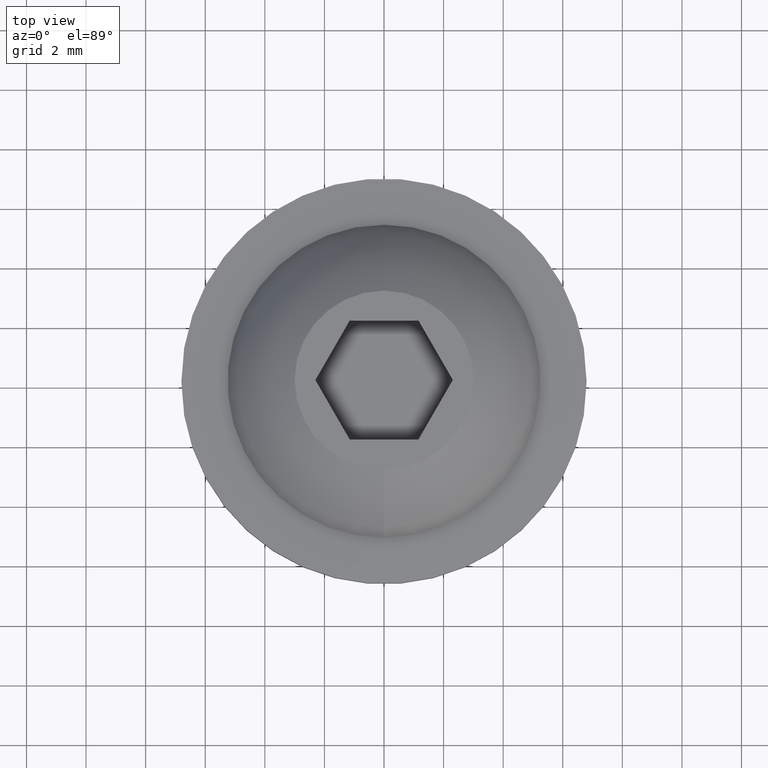
[diagram: clean part render]
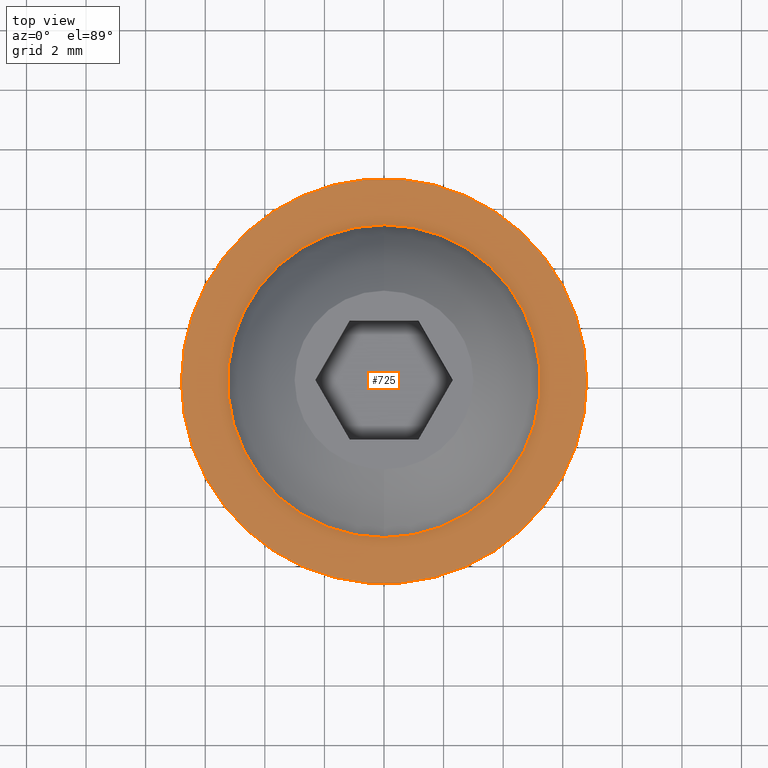
[diagram: same view with one face highlighted and labeled with its STEP entity id]
A machine part, top view. The second image highlights one B-rep face of the part: STEP entity #725.
In plain terms, the highlighted planar face has unit normal (0, 0, 1).
Its self-contained STEP definition (entity closure, byte-faithful):
#11 = EDGE_LOOP ( 'NONE', ( #456, #394 ) ) ;
#17 = CARTESIAN_POINT ( 'NONE',  ( -1.493154693746563500E-011, -5.249999999927985600, 1.200000000112147400 ) ) ;
#56 = CARTESIAN_POINT ( 'NONE',  ( -6.799999999999999800, 2.664535259100380000E-016, 1.200000000000002800 ) ) ;
#79 = EDGE_CURVE ( 'NONE', #580, #399, #201, .T. ) ;
#116 = PLANE ( 'NONE',  #158 ) ;
#133 = AXIS2_PLACEMENT_3D ( 'NONE', #551, #154, #620 ) ;
#134 = CIRCLE ( 'NONE', #218, 5.249999999985135400 ) ;
#154 = DIRECTION ( 'NONE',  ( -2.220446049250310100E-016, -2.220446049250310100E-016, -1.000000000000000000 ) ) ;
#158 = AXIS2_PLACEMENT_3D ( 'NONE', #858, #578, #656 ) ;
#181 = ORIENTED_EDGE ( 'NONE', *, *, #522, .F. ) ;
#201 = CIRCLE ( 'NONE', #795, 5.249999999985135400 ) ;
#218 = AXIS2_PLACEMENT_3D ( 'NONE', #841, #296, #508 ) ;
#243 = ORIENTED_EDGE ( 'NONE', *, *, #575, .F. ) ;
#296 = DIRECTION ( 'NONE',  ( 4.433230403294821800E-012, -1.691991454407798400E-011, -1.000000000000000000 ) ) ;
#301 = CARTESIAN_POINT ( 'NONE',  ( 2.664535259100380000E-016, 2.664535259100380000E-016, 1.200000000000001500 ) ) ;
#304 = CARTESIAN_POINT ( 'NONE',  ( -1.493218987703518600E-011, 5.250000000042283500, 1.199999999934488600 ) ) ;
#330 = FACE_BOUND ( 'NONE', #11, .T. ) ;
#387 = AXIS2_PLACEMENT_3D ( 'NONE', #301, #443, #699 ) ;
#394 = ORIENTED_EDGE ( 'NONE', *, *, #601, .T. ) ;
#399 = VERTEX_POINT ( 'NONE', #17 ) ;
#420 = VERTEX_POINT ( 'NONE', #596 ) ;
#443 = DIRECTION ( 'NONE',  ( -2.220446049250310100E-016, -2.220446049250310100E-016, -1.000000000000000000 ) ) ;
#456 = ORIENTED_EDGE ( 'NONE', *, *, #79, .T. ) ;
#492 = CARTESIAN_POINT ( 'NONE',  ( -1.493218987703518900E-011, 5.714839334910594300E-011, 1.200000000023317700 ) ) ;
#508 = DIRECTION ( 'NONE',  ( 0.0000000000000000000, 1.000000000000000000, -1.691991454356702500E-011 ) ) ;
#522 = EDGE_CURVE ( 'NONE', #420, #600, #832, .T. ) ;
#537 = CIRCLE ( 'NONE', #387, 6.799999999999999800 ) ;
#551 = CARTESIAN_POINT ( 'NONE',  ( 2.664535259100380000E-016, 2.664535259100380000E-016, 1.200000000000001500 ) ) ;
#575 = EDGE_CURVE ( 'NONE', #600, #420, #537, .T. ) ;
#578 = DIRECTION ( 'NONE',  ( 2.220446049250310100E-016, 2.220446049250310100E-016, 1.000000000000000000 ) ) ;
#580 = VERTEX_POINT ( 'NONE', #304 ) ;
#596 = CARTESIAN_POINT ( 'NONE',  ( 6.799999999999999800, 9.659865863752194100E-016, 1.200000000000000000 ) ) ;
#600 = VERTEX_POINT ( 'NONE', #56 ) ;
#601 = EDGE_CURVE ( 'NONE', #399, #580, #134, .T. ) ;
#610 = EDGE_LOOP ( 'NONE', ( #243, #181 ) ) ;
#620 = DIRECTION ( 'NONE',  ( -1.000000000000000000, 0.0000000000000000000, 2.232180943352509300E-016 ) ) ;
#624 = DIRECTION ( 'NONE',  ( 0.0000000000000000000, 1.000000000000000000, -1.691991454356702500E-011 ) ) ;
#637 = DIRECTION ( 'NONE',  ( 4.433230403294821800E-012, -1.691991454407798400E-011, -1.000000000000000000 ) ) ;
#656 = DIRECTION ( 'NONE',  ( 1.000000000000000000, 0.0000000000000000000, -2.220446049250310100E-016 ) ) ;
#699 = DIRECTION ( 'NONE',  ( -1.000000000000000000, 0.0000000000000000000, 2.232180943352509300E-016 ) ) ;
#725 = ADVANCED_FACE ( 'NONE', ( #330, #802 ), #116, .T. ) ;
#795 = AXIS2_PLACEMENT_3D ( 'NONE', #492, #637, #624 ) ;
#802 = FACE_OUTER_BOUND ( 'NONE', #610, .T. ) ;
#832 = CIRCLE ( 'NONE', #133, 6.799999999999999800 ) ;
#841 = CARTESIAN_POINT ( 'NONE',  ( -1.493218987703518900E-011, 5.714839334910594300E-011, 1.200000000023317700 ) ) ;
#858 = CARTESIAN_POINT ( 'NONE',  ( 2.664535259100380000E-016, 2.664535259100380000E-016, 1.200000000000000000 ) ) ;